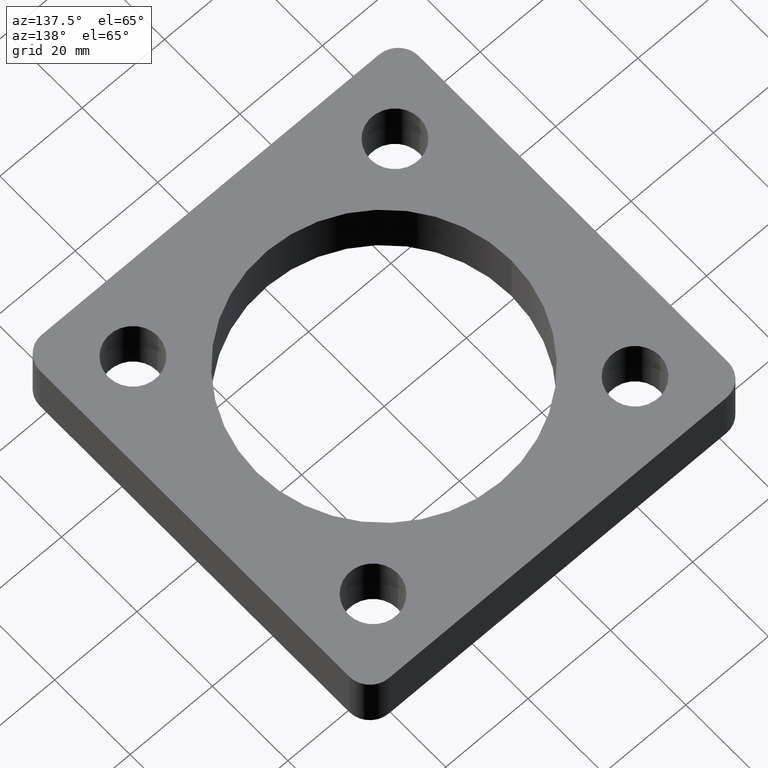
[diagram: clean part render]
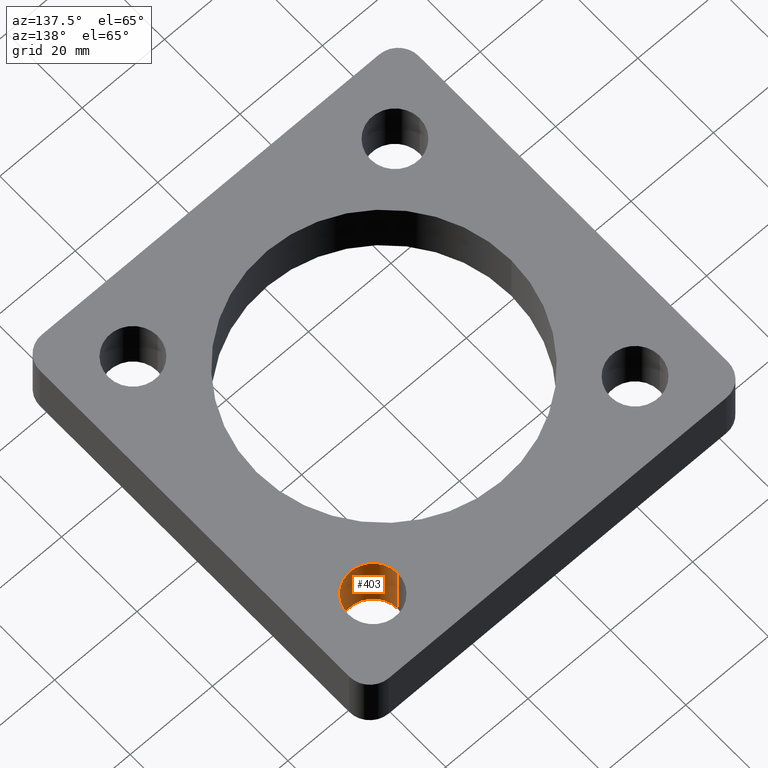
[diagram: same view with one face highlighted and labeled with its STEP entity id]
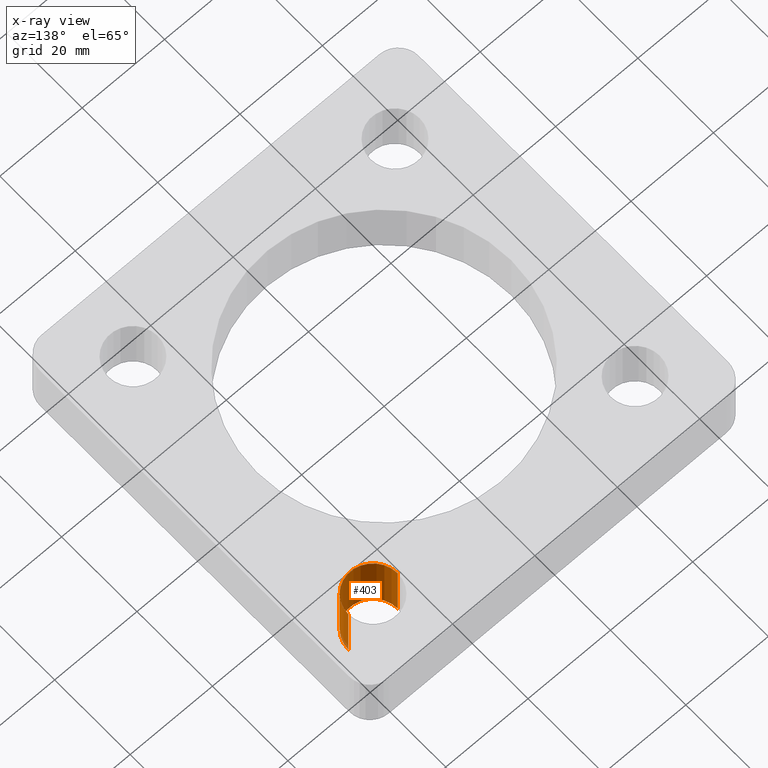
[diagram: x-ray of the same camera — body ghosted, the highlighted face saturated]
A machine part, auxiliary view. The second image highlights one B-rep face of the part: STEP entity #403.
The next image is the same camera in x-ray: the body ghosted, the highlighted face saturated — about 1% of this face is hidden behind the body in this view.
In plain terms, the highlighted cylindrical surface (edge-blend (fillet) strip) has radius 6 mm, axis along (-0, -0, 1).
Its self-contained STEP definition (entity closure, byte-faithful):
#26 = VERTEX_POINT ( 'NONE', #447 ) ;
#35 = CARTESIAN_POINT ( 'NONE',  ( 31.81980515339457583, 31.81980515339470728, -16.00000000000000000 ) ) ;
#70 = CARTESIAN_POINT ( 'NONE',  ( 31.81980515339457583, 31.81980515339470728, -16.00000000000000000 ) ) ;
#75 = VERTEX_POINT ( 'NONE', #619 ) ;
#77 = LINE ( 'NONE', #533, #385 ) ;
#78 = AXIS2_PLACEMENT_3D ( 'NONE', #70, #123, #726 ) ;
#123 = DIRECTION ( 'NONE',  ( -0.000000000000000000, -0.000000000000000000, 1.000000000000000000 ) ) ;
#145 = CIRCLE ( 'NONE', #399, 5.999999999999998224 ) ;
#151 = DIRECTION ( 'NONE',  ( 0.000000000000000000, 0.000000000000000000, 1.000000000000000000 ) ) ;
#188 = CARTESIAN_POINT ( 'NONE',  ( 37.81980515339457583, 31.81980515339470728, -16.00000000000000000 ) ) ;
#202 = EDGE_CURVE ( 'NONE', #75, #510, #145, .T. ) ;
#236 = LINE ( 'NONE', #408, #593 ) ;
#265 = AXIS2_PLACEMENT_3D ( 'NONE', #730, #686, #556 ) ;
#288 = ORIENTED_EDGE ( 'NONE', *, *, #458, .F. ) ;
#290 = CYLINDRICAL_SURFACE ( 'NONE', #78, 5.999999999999998224 ) ;
#293 = DIRECTION ( 'NONE',  ( -0.000000000000000000, -0.000000000000000000, 1.000000000000000000 ) ) ;
#297 = DIRECTION ( 'NONE',  ( -0.000000000000000000, -0.000000000000000000, 1.000000000000000000 ) ) ;
#385 = VECTOR ( 'NONE', #293, 1000.000000000000000 ) ;
#399 = AXIS2_PLACEMENT_3D ( 'NONE', #35, #151, #487 ) ;
#403 = ADVANCED_FACE ( 'NONE', ( #465 ), #290, .F. ) ;
#408 = CARTESIAN_POINT ( 'NONE',  ( 25.81980515339457583, 31.81980515339470728, -16.00000000000000000 ) ) ;
#422 = CIRCLE ( 'NONE', #265, 5.999999999999998224 ) ;
#427 = ORIENTED_EDGE ( 'NONE', *, *, #202, .F. ) ;
#447 = CARTESIAN_POINT ( 'NONE',  ( 25.81980515339457583, 31.81980515339470728, -1.000000000000000888 ) ) ;
#458 = EDGE_CURVE ( 'NONE', #510, #718, #77, .T. ) ;
#465 = FACE_OUTER_BOUND ( 'NONE', #746, .T. ) ;
#487 = DIRECTION ( 'NONE',  ( -1.000000000000000000, 0.000000000000000000, 0.000000000000000000 ) ) ;
#493 = ORIENTED_EDGE ( 'NONE', *, *, #641, .F. ) ;
#510 = VERTEX_POINT ( 'NONE', #188 ) ;
#533 = CARTESIAN_POINT ( 'NONE',  ( 37.81980515339457583, 31.81980515339470728, -16.00000000000000000 ) ) ;
#556 = DIRECTION ( 'NONE',  ( 1.000000000000000000, 0.000000000000000000, 0.000000000000000000 ) ) ;
#557 = EDGE_CURVE ( 'NONE', #75, #26, #236, .T. ) ;
#574 = CARTESIAN_POINT ( 'NONE',  ( 37.81980515339457583, 31.81980515339470728, -1.000000000000000888 ) ) ;
#593 = VECTOR ( 'NONE', #297, 1000.000000000000000 ) ;
#619 = CARTESIAN_POINT ( 'NONE',  ( 25.81980515339457583, 31.81980515339470728, -16.00000000000000000 ) ) ;
#641 = EDGE_CURVE ( 'NONE', #718, #26, #422, .T. ) ;
#652 = ORIENTED_EDGE ( 'NONE', *, *, #557, .T. ) ;
#686 = DIRECTION ( 'NONE',  ( -0.000000000000000000, -0.000000000000000000, -1.000000000000000000 ) ) ;
#718 = VERTEX_POINT ( 'NONE', #574 ) ;
#726 = DIRECTION ( 'NONE',  ( 1.000000000000000000, 0.000000000000000000, 0.000000000000000000 ) ) ;
#730 = CARTESIAN_POINT ( 'NONE',  ( 31.81980515339457583, 31.81980515339470728, -1.000000000000000888 ) ) ;
#746 = EDGE_LOOP ( 'NONE', ( #427, #652, #493, #288 ) ) ;